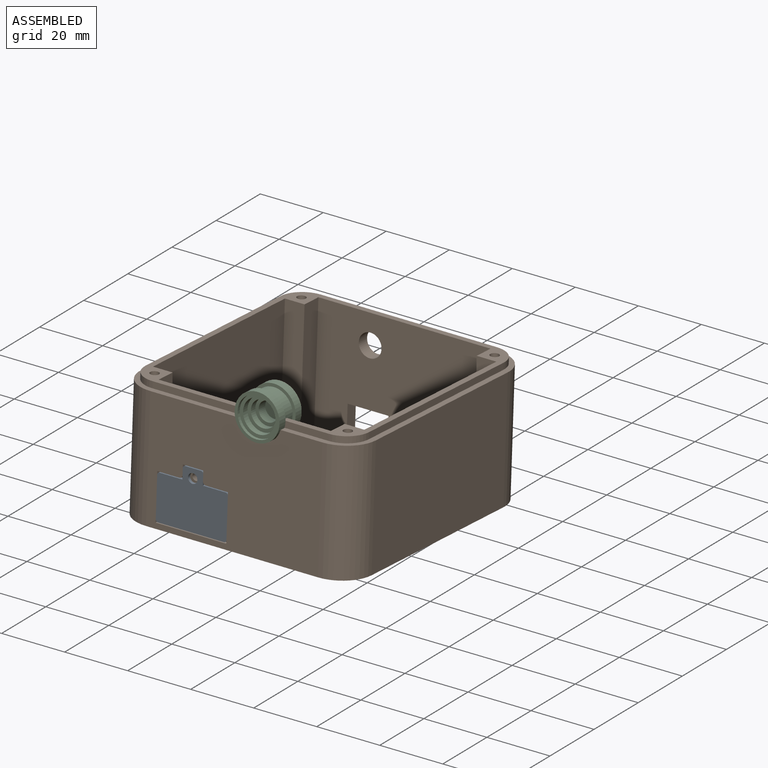
[diagram: assembled view]
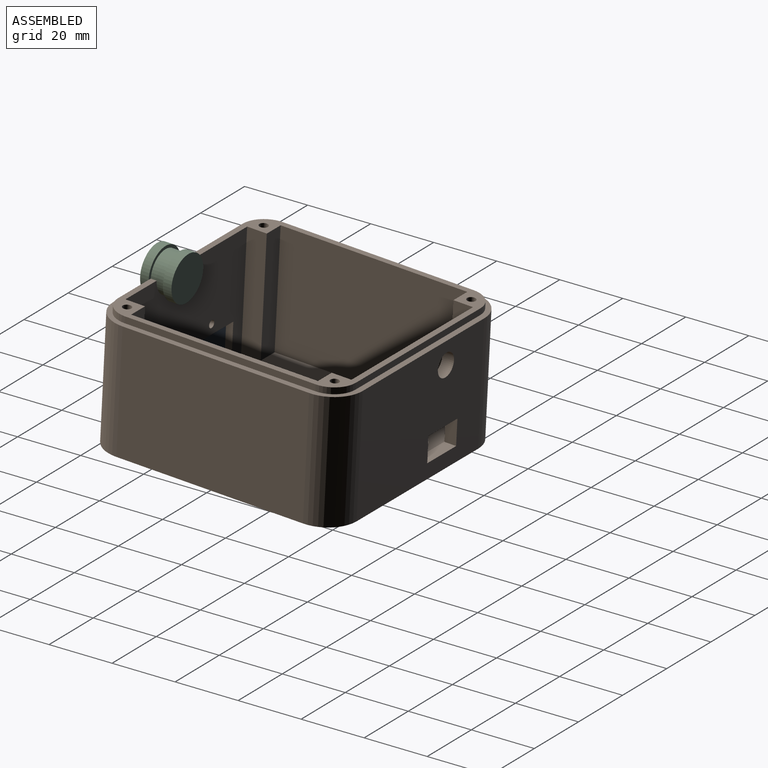
[diagram: assembled view, second angle]
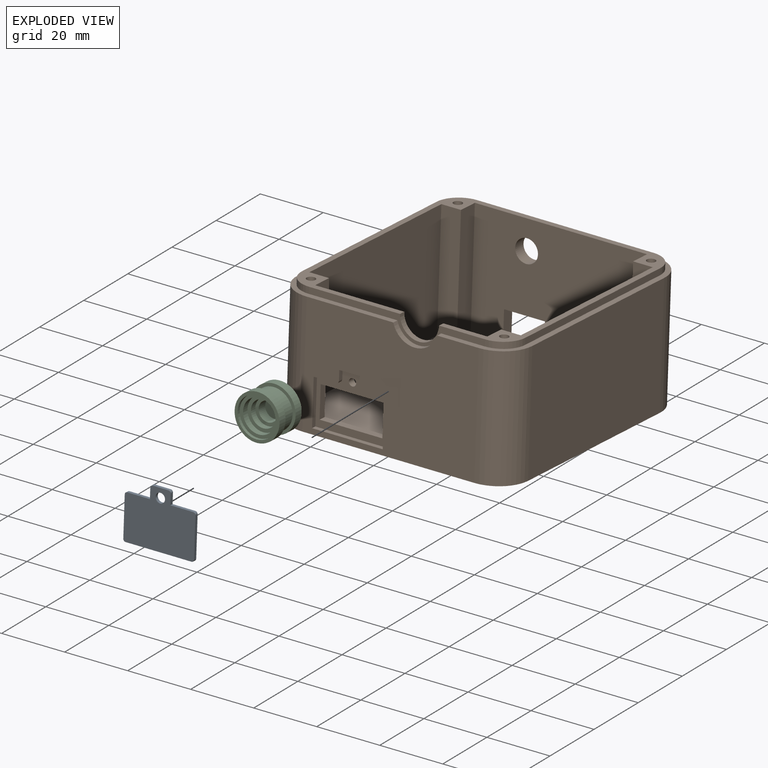
[diagram: exploded view]
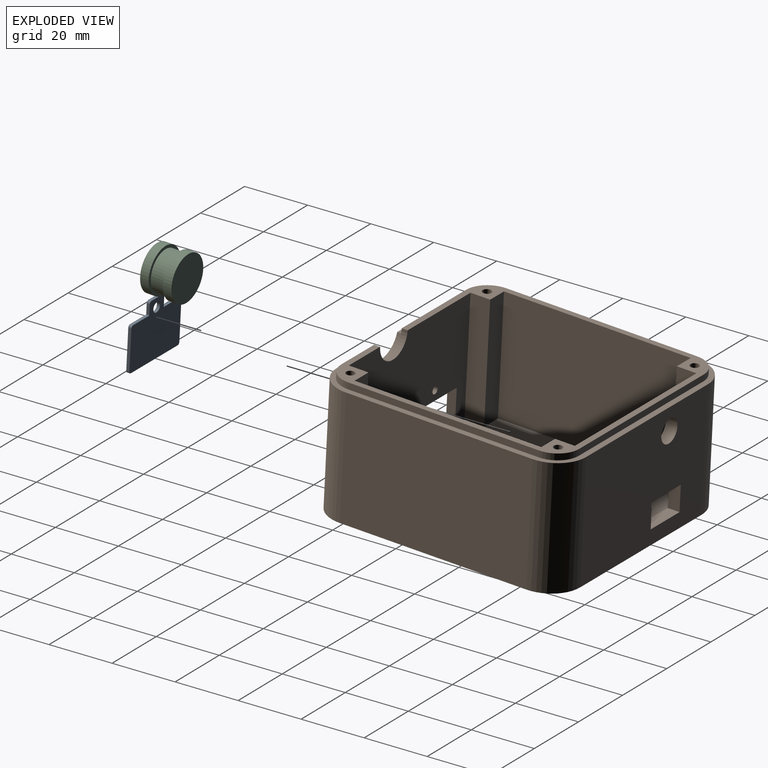
[diagram: exploded view, second angle]
ASSEMBLY  parts=3 mates=5
PART A: 17 faces, bbox 22.5x18x1 mm
  f0: plane 21x1mm, normal (0,1,0), area 21mm2, adj f8,f9,f11,f16
  f1: plane 12.5x1mm, normal (-1,0,0), area 12.5mm2, adj f8,f9,f11,f12
  f2: plane 7.25x1mm, normal (0,-1,0), area 7.3mm2, adj f3,f8,f9,f12
  f3: plane 3.25x1mm, normal (-1,0,0), area 3.3mm2, adj f2,f8,f9,f13
  f4: plane 5x1mm, normal (0,-1,0), area 5mm2, adj f8,f9,f13,f14
  f5: plane 3.25x1mm, normal (1,0,0), area 3.3mm2, adj f6,f8,f9,f14
  f6: plane 7.25x1mm, normal (0,-1,0), area 7.3mm2, adj f5,f8,f9,f15
  f7: plane 12.5x1mm, normal (1,0,0), area 12.5mm2, adj f8,f9,f15,f16
  f8: plane 22.5x18mm, normal (0,0,1), area 333.2mm2, adj f0,f1,f2,f3,f4,f5,f6,f7
  f9: plane 22.5x18mm, normal (0,0,-1), area 333.2mm2, adj f0,f1,f2,f3,f4,f5,f6,f7
  f10: cylinder r=1.5mm len=3mm, axis (0,0,1), area 9.4mm2, adj f8,f9
  f11: cylinder r=0.75mm len=1mm, axis (0,0,1), area 1.2mm2, adj f0,f1,f8,f9
  f12: cylinder r=0.75mm len=1mm, axis (0,0,-1), area 1.2mm2, adj f1,f2,f8,f9
  f13: cylinder r=0.75mm len=1mm, axis (0,0,-1), area 1.2mm2, adj f3,f4,f8,f9
  f14: cylinder r=0.75mm len=1mm, axis (0,0,-1), area 1.2mm2, adj f4,f5,f8,f9
  f15: cylinder r=0.75mm len=1mm, axis (0,0,1), area 1.2mm2, adj f6,f7,f8,f9
  f16: cylinder r=0.75mm len=1mm, axis (0,0,-1), area 1.2mm2, adj f0,f7,f8,f9
PART B: 75 faces, bbox 79.5x74.8x40 mm
  f0: plane 54.8x38mm, normal (-1,0,0), area 1675.8mm2, adj f24,f25,f40,f42,f62,f63,f64,f65
  f1: plane 10x2.25mm, normal (0,-1,0), area 22.5mm2, adj f2,f4,f5,f71
  f2: plane 20x2.25mm, normal (0,0,1), area 45mm2, adj f1,f3,f5,f71
  f3: plane 10x2.25mm, normal (0,1,0), area 22.5mm2, adj f2,f4,f5,f71
  f4: plane 20x2.25mm, normal (0,0,-1), area 45mm2, adj f1,f3,f5,f71
  f5: plane 54.8x37mm, normal (1,0,0), area 1763.1mm2, adj f1,f2,f3,f4,f8,f15,f18,f19
  f6: plane 54.8x37mm, normal (-1,0,0), area 1882.3mm2, adj f8,f15,f16,f17,f57,f58,f59,f60
  f7: plane 54.8x38mm, normal (1,0,0), area 1937.1mm2, adj f24,f25,f41,f43,f57,f58,f59,f60
  f8: plane 75.75x71.05mm, normal (0,0,1), area 597.9mm2, adj f5,f6,f9,f10,f11,f12,f13,f14
  f9: plane 37x6.25mm, normal (1,0,0), area 231.2mm2, adj f8,f11,f15,f19
  f10: plane 37x6.25mm, normal (-1,0,0), area 231.2mm2, adj f8,f11,f15,f17
  f11: plane 59.5x37mm, normal (0,-1,0), area 2201.5mm2, adj f8,f9,f10,f15
  f12: plane 37x6.25mm, normal (1,0,0), area 231.2mm2, adj f8,f13,f15,f18
  f13: plane 59.5x37mm, normal (0,1,0), area 2201.5mm2, adj f8,f12,f14,f15
  f14: plane 37x6.25mm, normal (-1,0,0), area 231.2mm2, adj f8,f13,f15,f16
  f15: plane 72x67.3mm, normal (0,0,1), area 4630.4mm2, adj f5,f6,f9,f10,f11,f12,f13,f14
  f16: plane 37x6.25mm, normal (0,1,0), area 231.2mm2, adj f6,f8,f14,f15
  f17: plane 37x6.25mm, normal (0,-1,0), area 231.2mm2, adj f6,f8,f10,f15
  f18: plane 37x6.25mm, normal (0,1,0), area 231.2mm2, adj f5,f8,f12,f15
  f19: plane 37x6.25mm, normal (0,-1,0), area 231.2mm2, adj f5,f8,f9,f15
  f20: plane 60.75x2mm, normal (0,-1,0), area 121.5mm2, adj f8,f24,f36,f39
  f21: plane 56.05x7.25mm, normal (-1,0,0), area 105.7mm2, adj f8,f24,f36,f37,f56,f62
  f22: plane 60.75x2mm, normal (0,1,0), area 121.5mm2, adj f8,f24,f37,f38
  f23: plane 56.05x2mm, normal (1,0,0), area 112.1mm2, adj f8,f24,f38,f39
  f24: plane 79.5x74.8mm, normal (0,0,1), area 500.9mm2, adj f0,f7,f20,f21,f22,f23,f26,f27
  f25: plane 79.5x74.8mm, normal (0,0,-1), area 5860.8mm2, adj f0,f7,f26,f27,f40,f41,f42,f43
  f26: plane 59.5x38mm, normal (0,-1,0), area 2261mm2, adj f24,f25,f42,f43
  f27: plane 59.5x38mm, normal (0,1,0), area 2261mm2, adj f24,f25,f40,f41
  f28: cylinder r=1.36mm len=15mm, axis (0,0,1), area 128.2mm2, adj f8,f29
  f29: plane 2.72x2.72mm, normal (0,0,1), area 5.8mm2, adj f28
  f30: cylinder r=1.36mm len=15mm, axis (0,0,1), area 128.2mm2, adj f8,f31
  f31: plane 2.72x2.72mm, normal (0,0,1), area 5.8mm2, adj f30
  f32: cylinder r=1.36mm len=15mm, axis (0,0,1), area 128.2mm2, adj f8,f33
  f33: plane 2.72x2.72mm, normal (0,0,1), area 5.8mm2, adj f32
  f34: cylinder r=1.36mm len=15mm, axis (0,0,1), area 128.2mm2, adj f8,f35
  f35: plane 2.72x2.72mm, normal (0,0,1), area 5.8mm2, adj f34
  f36: cylinder r=7.5mm len=7.5mm, axis (0,0,-1), area 23.6mm2, adj f8,f20,f21,f24
  f37: cylinder r=7.5mm len=7.5mm, axis (0,0,1), area 23.6mm2, adj f8,f21,f22,f24
  f38: cylinder r=7.5mm len=7.5mm, axis (0,0,-1), area 23.6mm2, adj f8,f22,f23,f24
  f39: cylinder r=7.5mm len=7.5mm, axis (0,0,1), area 23.6mm2, adj f8,f20,f23,f24
  f40: cylinder r=10mm len=38mm, axis (0,0,-1), area 596.9mm2, adj f0,f24,f25,f27
  f41: cylinder r=10mm len=38mm, axis (0,0,1), area 596.9mm2, adj f7,f24,f25,f27
  f42: cylinder r=10mm len=38mm, axis (0,0,1), area 596.9mm2, adj f0,f24,f25,f26
  f43: cylinder r=10mm len=38mm, axis (0,0,-1), area 596.9mm2, adj f7,f24,f25,f26
  f44: cylinder r=2.5mm len=5mm, axis (0,0,-1), area 47.1mm2, adj f15,f45
  f45: plane 5x5mm, normal (0,0,1), area 14.7mm2, adj f44,f50
  f46: cylinder r=2.5mm len=5mm, axis (0,0,-1), area 47.1mm2, adj f15,f47
  f47: plane 5x5mm, normal (0,0,1), area 14.7mm2, adj f46,f52
  f48: cylinder r=2.5mm len=5mm, axis (0,0,-1), area 47.1mm2, adj f15,f49
  f49: plane 5x5mm, normal (0,0,1), area 14.7mm2, adj f48,f54
  f50: cylinder r=1.25mm len=2.5mm, axis (0,0,-1), area 15.7mm2, adj f45,f51
  f51: plane 2.5x2.5mm, normal (0,0,1), area 4.9mm2, adj f50
  f52: cylinder r=1.25mm len=2.5mm, axis (0,0,-1), area 15.7mm2, adj f47,f53
  f53: plane 2.5x2.5mm, normal (0,0,1), area 4.9mm2, adj f52
  f54: cylinder r=1.25mm len=2.5mm, axis (0,0,-1), area 15.7mm2, adj f49,f55
  f55: plane 2.5x2.5mm, normal (0,0,1), area 4.9mm2, adj f54
  f56: cylinder r=6.2mm len=12.4mm, axis (-1,0,0), area 36.5mm2, adj f5,f8,f21
  f57: plane 13x3.75mm, normal (0,0,-1), area 48.8mm2, adj f6,f7,f58,f60
  f58: plane 8x3.75mm, normal (0,1,0), area 30mm2, adj f6,f7,f57,f59
  f59: plane 13x3.75mm, normal (0,0,1), area 48.8mm2, adj f6,f7,f58,f60
  f60: plane 8x3.75mm, normal (0,-1,0), area 30mm2, adj f6,f7,f57,f59
  f61: cylinder r=3.62mm len=7.25mm, axis (1,0,0), area 85.4mm2, adj f6,f7
  f62: cylinder r=7.25mm len=13.94mm, axis (-1,0,0), area 35.1mm2, adj f0,f21,f24
  f63: plane 14.5x1.5mm, normal (0,-1,0), area 21.8mm2, adj f0,f64,f70,f71
  f64: plane 22.5x1.5mm, normal (0,0,1), area 33.8mm2, adj f0,f63,f65,f71
  f65: plane 14.5x1.5mm, normal (0,1,0), area 21.8mm2, adj f0,f64,f66,f71
  f66: plane 7x1.5mm, normal (0,0,-1), area 10.5mm2, adj f0,f65,f71,f73
  f67: plane 3x1.5mm, normal (0,1,0), area 4.5mm2, adj f0,f68,f71,f73
  f68: plane 6.5x1.5mm, normal (0,0,-1), area 9.8mm2, adj f0,f67,f69,f71
  f69: plane 3x1.5mm, normal (0,-1,0), area 4.5mm2, adj f0,f68,f71,f74
  f70: plane 7x1.5mm, normal (0,0,-1), area 10.5mm2, adj f0,f63,f71,f74
  f71: plane 22.5x18.5mm, normal (-1,0,0), area 148.5mm2, adj f1,f2,f3,f4,f63,f64,f65,f66
  f72: cylinder r=1.15mm len=2.3mm, axis (-1,0,0), area 16.3mm2, adj f5,f71
  f73: cylinder r=1mm len=1.5mm, axis (-1,0,0), area 2.4mm2, adj f0,f66,f67,f71
  f74: cylinder r=1mm len=1.5mm, axis (-1,0,0), area 2.4mm2, adj f0,f69,f70,f71
PART C: 15 faces, bbox 14.3x10x14.3 mm
  f0: cylinder r=7.15mm len=14.3mm, axis (0,1,0), area 122.7mm2, adj f1,f2
  f1: plane 14.3x14.3mm, normal (0,1,0), area 160.6mm2, adj f0
  f2: plane 14.3x14.3mm, normal (0,-1,0), area 40.2mm2, adj f0,f4
  f3: plane 14.3x14.3mm, normal (0,1,0), area 40.2mm2, adj f4,f6
  f4: cylinder r=6.19mm len=12.38mm, axis (0,1,0), area 176.4mm2, adj f2,f3
  f5: plane 14.3x14.3mm, normal (0,-1,0), area 39.5mm2, adj f6,f7
  f6: cylinder r=7.15mm len=14.3mm, axis (0,1,0), area 122.7mm2, adj f3,f5
  f7: cylinder r=6.21mm len=12.42mm, axis (0,-1,0), area 39mm2, adj f5,f8
  f8: plane 12.42x12.42mm, normal (0,-1,0), area 37.2mm2, adj f7,f9
  f9: cylinder r=5.17mm len=10.33mm, axis (0,-1,0), area 64.9mm2, adj f8,f10
  f10: plane 10.33x10.33mm, normal (0,-1,0), area 31.8mm2, adj f9,f11
  f11: cylinder r=4.07mm len=8.14mm, axis (0,-1,0), area 51.2mm2, adj f10,f12
  f12: plane 8.14x8.14mm, normal (0,-1,0), area 23mm2, adj f11,f13
  f13: cylinder r=3.04mm len=6.08mm, axis (0,-1,0), area 57.3mm2, adj f12,f14
  f14: plane 6.08x6.08mm, normal (0,-1,0), area 29.1mm2, adj f13
PLACE A rot(axis=(-1,0,0),93deg) t=(-105.54,-74.82,3.46)mm
PLACE B rot(axis=(-0.03,0.03,1),89.8deg) t=(-92.26,-34.24,19.39)mm
PLACE C rot(axis=(-0.09,-1,0.02),34.4deg) t=(-85.27,-68.79,41.21)mm
MATE cylindrical A.f10 <-> B.f72  axis (0,-1,0.05) through (-105.54,-74.03,18.58)mm
MATE cylindrical C.f0 <-> B.f56  axis (0,-1,0.05) through (-85.26,-66.53,41.1)mm
MATE parallel A.f1 <-> B.f63  axis (-1,0,0) through (-116.79,-73.9,10.43)mm
MATE planar B.f21 <-> C.f13  axis (0,-1,0.05) through (-92.87,-71.11,39.64)mm
MATE planar B.f0 <-> A.f9  axis (0,-1,0.05) through (-94.29,-74.12,17.71)mm
